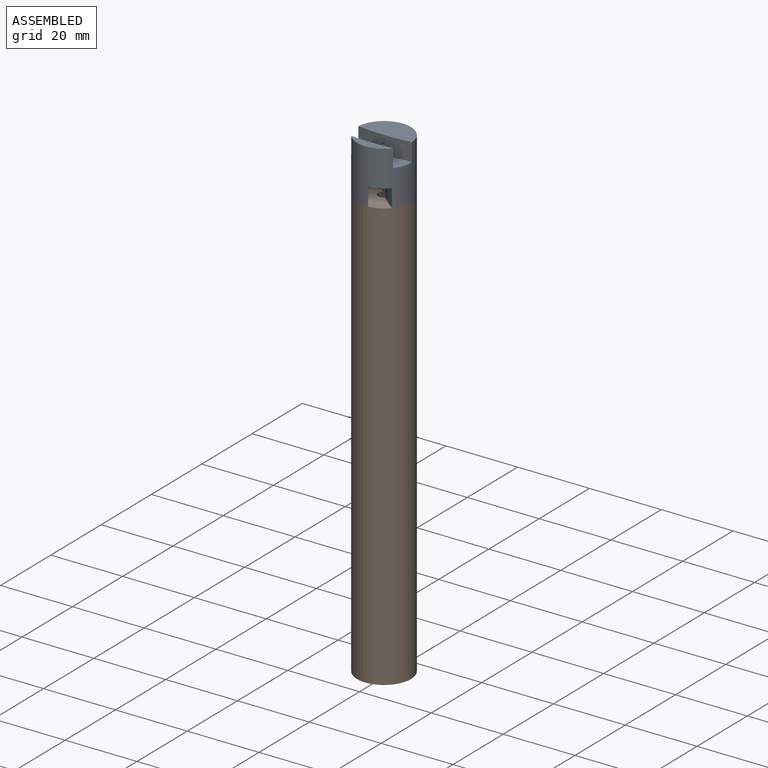
[diagram: assembled view]
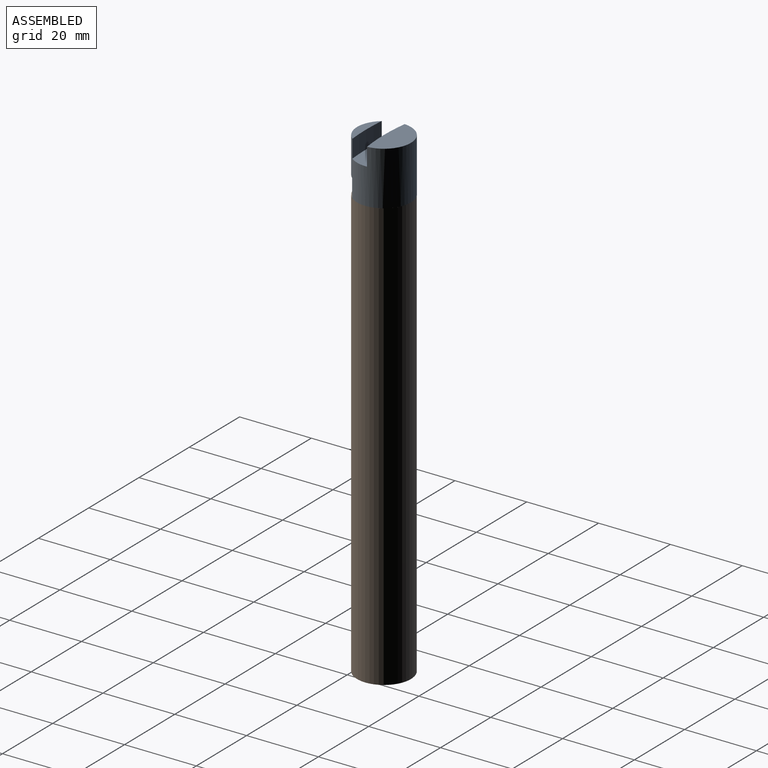
[diagram: assembled view, second angle]
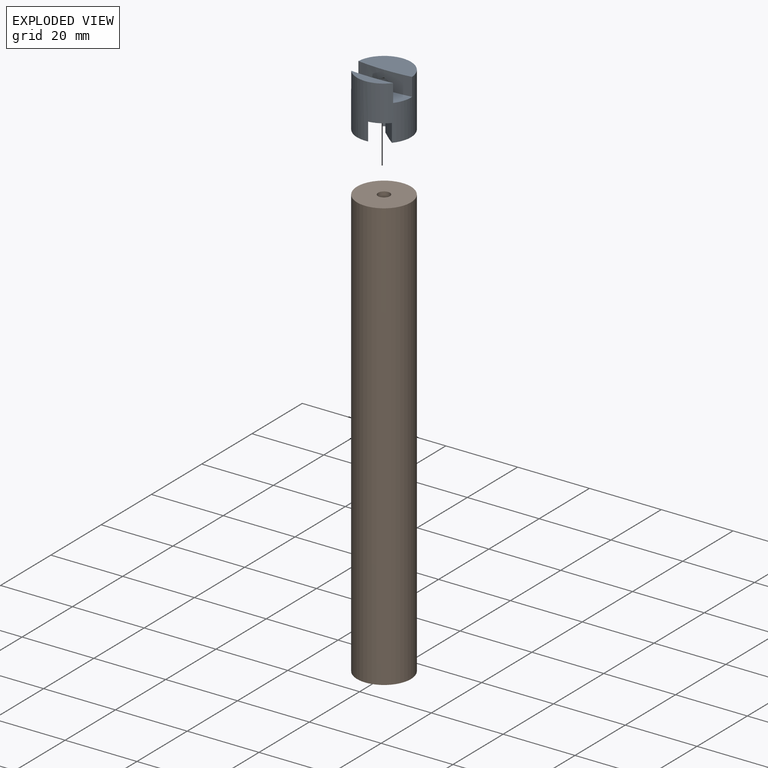
[diagram: exploded view]
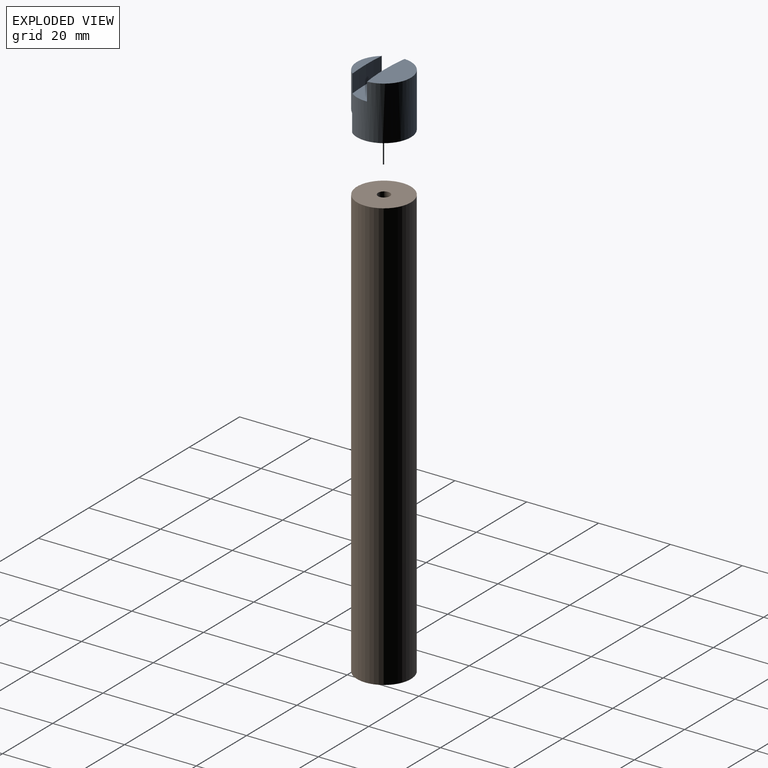
[diagram: exploded view, second angle]
ASSEMBLY  parts=2 mates=2
PART A: 14 faces, bbox 15x15x15 mm
  f0: plane 8.29x8.29mm, normal (0,0,-1), area 20.4mm2, adj f3,f10
  f1: cylinder r=1.65mm len=12.1mm, axis (0,0,-1), area 88.3mm2, adj f2,f6,f7,f9,f11,f12,f13
  f2: cylinder r=55mm len=14.97mm, axis (0,0,1), area 66.5mm2, adj f1,f3,f4,f7,f9
  f3: cylinder r=7.5mm len=15mm, axis (0,0,-1), area 594.6mm2, adj f0,f2,f4,f5,f6,f7,f8,f10
  f4: plane 14.97x7.5mm, normal (0,0,1), area 85.8mm2, adj f2,f3
  f5: plane 11.66x2.78mm, normal (0,0,1), area 20.4mm2, adj f3,f8
  f6: plane 12.43x12.43mm, normal (0,0,-1), area 81.6mm2, adj f1,f3,f11,f12
  f7: plane 15x5.51mm, normal (0,0,1), area 66.2mm2, adj f1,f2,f3,f8
  f8: cylinder r=60mm len=11.66mm, axis (0,0,1), area 58.4mm2, adj f3,f5,f7
  f9: cone r=0mm half-angle=59deg, axis (0,0,-1), area 5mm2, adj f1,f2
  f10: cylinder r=60mm len=8.25mm, axis (0,0,-1), area 58.4mm2, adj f0,f3,f13
  f11: cylinder r=55mm len=5mm, axis (0,0,-1), area 29.3mm2, adj f1,f3,f6,f13
  f12: cylinder r=55mm len=5mm, axis (0,0,-1), area 29.3mm2, adj f1,f3,f6,f13
  f13: plane 13.11x13.11mm, normal (0,0,-1), area 66.2mm2, adj f1,f3,f10,f11,f12
PART B: 5 faces, bbox 15x15x120 mm
  f0: cylinder r=7.5mm len=120mm, axis (0,0,-1), area 5654.9mm2, adj f1,f2
  f1: plane 15x15mm, normal (0,0,1), area 168.2mm2, adj f0,f4
  f2: plane 15x15mm, normal (0,0,-1), area 176.7mm2, adj f0
  f3: cone r=0mm half-angle=59deg, axis (0,0,1), area 10mm2, adj f4
  f4: cylinder r=1.65mm len=12.1mm, axis (0,0,1), area 125.4mm2, adj f1,f3
PLACE A t=(-30.86,-23.33,44.24)mm
PLACE B t=(-30.86,-23.33,-75.76)mm fixed
MATE cylindrical B.f0 <-> A.f1  axis (0,0,1) through (-30.86,-23.33,44.24)mm
MATE parallel A.f3 <-> B.f0  axis (0,0,-1) through (-30.86,-23.33,44.24)mm
